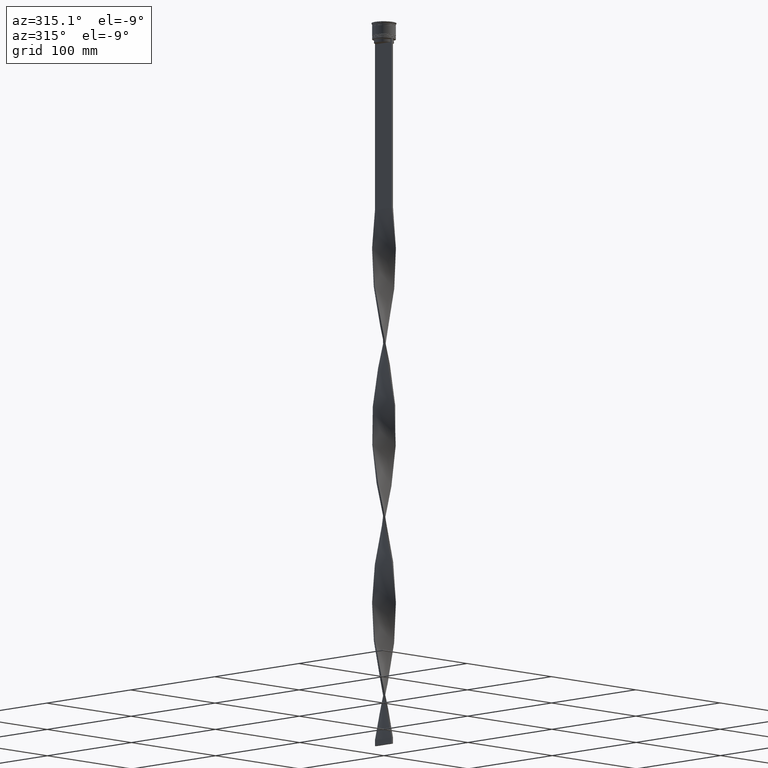
[diagram: clean part render]
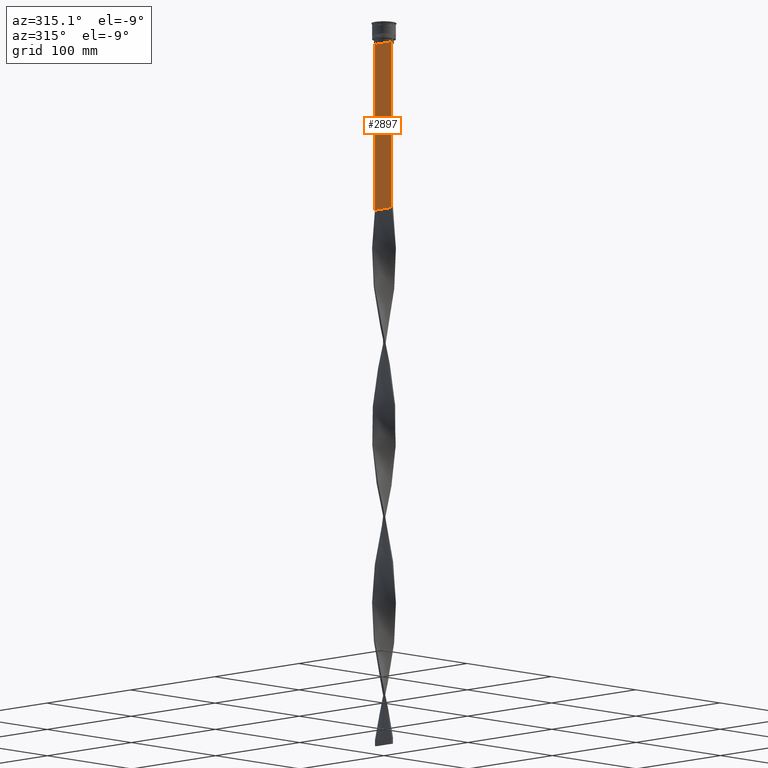
[diagram: same view with one face highlighted and labeled with its STEP entity id]
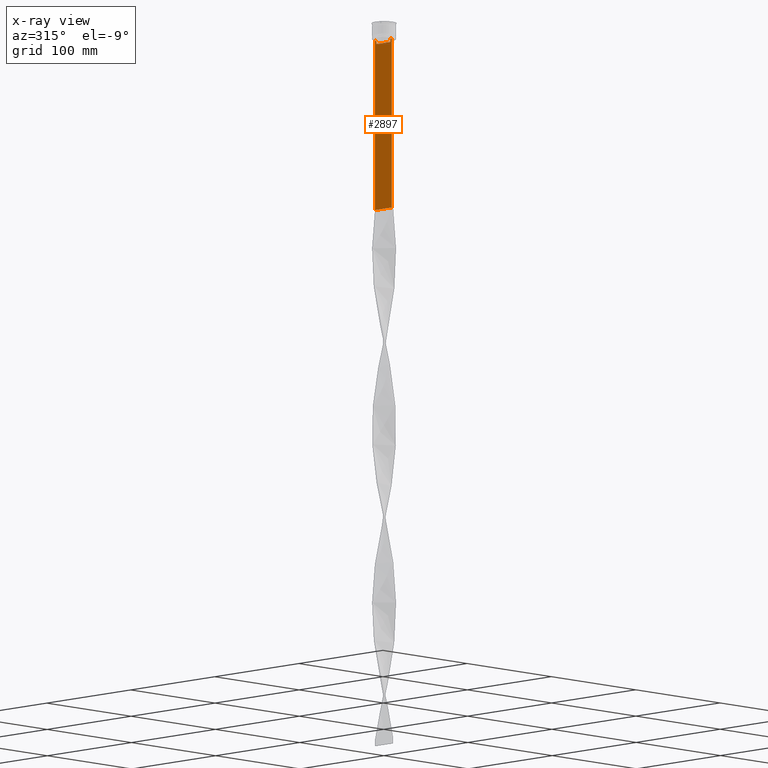
[diagram: x-ray of the same camera — body ghosted, the highlighted face saturated]
A machine part, auxiliary view. The second image highlights one B-rep face of the part: STEP entity #2897.
The next image is the same camera in x-ray: the body ghosted, the highlighted face saturated — about 0% of this face is hidden behind the body in this view.
In plain terms, the highlighted planar face has unit normal (-1, 0, 0).
Its self-contained STEP definition (entity closure, byte-faithful):
#110 = EDGE_CURVE ( 'NONE', #1362, #1894, #4490, .T. ) ;
#215 = VERTEX_POINT ( 'NONE', #3112 ) ;
#231 = DIRECTION ( 'NONE',  ( 0.000000000000000000, -1.000000000000000000, 0.000000000000000000 ) ) ;
#317 = CARTESIAN_POINT ( 'NONE',  ( -0.7499999999999997780, 9.871550030263740894, -14.00000000000000178 ) ) ;
#331 = LINE ( 'NONE', #759, #829 ) ;
#350 = DIRECTION ( 'NONE',  ( 0.000000000000000000, 1.000000000000000000, 0.000000000000000000 ) ) ;
#419 = LINE ( 'NONE', #1823, #915 ) ;
#455 = ORIENTED_EDGE ( 'NONE', *, *, #110, .F. ) ;
#513 = VERTEX_POINT ( 'NONE', #3060 ) ;
#514 = CARTESIAN_POINT ( 'NONE',  ( -0.7499999999999997780, 8.366450860430608927, 0.000000000000000000 ) ) ;
#581 = EDGE_CURVE ( 'NONE', #1566, #3978, #3889, .T. ) ;
#584 = LINE ( 'NONE', #945, #3787 ) ;
#589 = EDGE_CURVE ( 'NONE', #2084, #732, #772, .T. ) ;
#732 = VERTEX_POINT ( 'NONE', #4033 ) ;
#742 = CARTESIAN_POINT ( 'NONE',  ( -0.7499999999999997780, 8.868342573446296839, -14.00000000000000178 ) ) ;
#746 = ORIENTED_EDGE ( 'NONE', *, *, #4021, .F. ) ;
#759 = CARTESIAN_POINT ( 'NONE',  ( -0.7499999999999997780, -10.00000000000000533, -157.9999999999999716 ) ) ;
#772 = LINE ( 'NONE', #1461, #3246 ) ;
#829 = VECTOR ( 'NONE', #350, 1000.000000000000000 ) ;
#850 = CARTESIAN_POINT ( 'NONE',  ( -0.7499999999999997780, -8.533766903463440912, -14.33335220807192201 ) ) ;
#909 = VECTOR ( 'NONE', #1809, 1000.000000000000000 ) ;
#915 = VECTOR ( 'NONE', #3241, 1000.000000000000000 ) ;
#939 = LINE ( 'NONE', #2682, #4300 ) ;
#945 = CARTESIAN_POINT ( 'NONE',  ( -0.7499999999999997780, 8.400000000000003908, -17.00000000000000000 ) ) ;
#947 = ORIENTED_EDGE ( 'NONE', *, *, #1652, .F. ) ;
#1074 = EDGE_CURVE ( 'NONE', #3623, #513, #3672, .T. ) ;
#1115 = CARTESIAN_POINT ( 'NONE',  ( -0.7499999999999997780, -8.701063080777123204, -14.16668447713511547 ) ) ;
#1124 = EDGE_CURVE ( 'NONE', #4169, #1362, #419, .T. ) ;
#1146 = CARTESIAN_POINT ( 'NONE',  ( -0.7499999999999997780, -8.366450860430608927, 0.000000000000000000 ) ) ;
#1198 = VECTOR ( 'NONE', #3367, 1000.000000000000000 ) ;
#1261 = ORIENTED_EDGE ( 'NONE', *, *, #2131, .F. ) ;
#1318 = DIRECTION ( 'NONE',  ( 0.000000000000000000, -1.000000000000000000, 0.000000000000000000 ) ) ;
#1328 = CARTESIAN_POINT ( 'NONE',  ( -0.7499999999999997780, -10.00000000000000533, -14.00000000000000178 ) ) ;
#1362 = VERTEX_POINT ( 'NONE', #317 ) ;
#1402 = VECTOR ( 'NONE', #3071, 1000.000000000000000 ) ;
#1461 = CARTESIAN_POINT ( 'NONE',  ( -0.7499999999999997780, -10.00000000000000533, -14.00000000000000178 ) ) ;
#1495 = ORIENTED_EDGE ( 'NONE', *, *, #1074, .F. ) ;
#1566 = VERTEX_POINT ( 'NONE', #1818 ) ;
#1652 = EDGE_CURVE ( 'NONE', #215, #2076, #3689, .T. ) ;
#1704 = EDGE_CURVE ( 'NONE', #2076, #3623, #584, .T. ) ;
#1785 = CARTESIAN_POINT ( 'NONE',  ( -0.7499999999999997780, 8.701063075415252257, -14.16668448247791723 ) ) ;
#1804 = B_SPLINE_CURVE_WITH_KNOTS ( 'NONE', 3,
 ( #2867, #850, #1115, #2585 ),
 .UNSPECIFIED., .F., .F.,
 ( 4, 4 ),
 ( 0.03866293624047253963, 0.03937282246709321309 ),
 .UNSPECIFIED. ) ;
#1809 = DIRECTION ( 'NONE',  ( 0.000000000000000000, 0.000000000000000000, -1.000000000000000000 ) ) ;
#1818 = CARTESIAN_POINT ( 'NONE',  ( -0.7499999999999997780, -10.00000000000000533, -14.00000000000000178 ) ) ;
#1823 = CARTESIAN_POINT ( 'NONE',  ( -0.7499999999999997780, -10.00000000000000533, -14.00000000000000178 ) ) ;
#1867 = ORIENTED_EDGE ( 'NONE', *, *, #1704, .F. ) ;
#1889 = CARTESIAN_POINT ( 'NONE',  ( -0.7499999999999997780, -8.366450860430608927, -17.00000000000000000 ) ) ;
#1894 = VERTEX_POINT ( 'NONE', #4499 ) ;
#2076 = VERTEX_POINT ( 'NONE', #3847 ) ;
#2084 = VERTEX_POINT ( 'NONE', #2457 ) ;
#2131 = EDGE_CURVE ( 'NONE', #513, #2084, #1804, .T. ) ;
#2210 = ORIENTED_EDGE ( 'NONE', *, *, #581, .F. ) ;
#2214 = ORIENTED_EDGE ( 'NONE', *, *, #3520, .F. ) ;
#2337 = DIRECTION ( 'NONE',  ( 0.000000000000000000, 0.000000000000000000, 1.000000000000000000 ) ) ;
#2414 = ORIENTED_EDGE ( 'NONE', *, *, #3293, .F. ) ;
#2457 = CARTESIAN_POINT ( 'NONE',  ( -0.7499999999999997780, -8.868342573446296839, -14.00000000000000178 ) ) ;
#2514 = ORIENTED_EDGE ( 'NONE', *, *, #1124, .F. ) ;
#2518 = VECTOR ( 'NONE', #3427, 1000.000000000000000 ) ;
#2585 = CARTESIAN_POINT ( 'NONE',  ( -0.7499999999999997780, -8.868342573446296839, -14.00000000000000178 ) ) ;
#2640 = ORIENTED_EDGE ( 'NONE', *, *, #3784, .T. ) ;
#2682 = CARTESIAN_POINT ( 'NONE',  ( -0.7499999999999997780, -10.00000000000000533, -14.00000000000000178 ) ) ;
#2767 = PLANE ( 'NONE',  #4224 ) ;
#2860 = CARTESIAN_POINT ( 'NONE',  ( -0.7499999999999997780, -10.00000000000000533, 6.056171120131581098 ) ) ;
#2862 = CARTESIAN_POINT ( 'NONE',  ( -0.7499999999999997780, 9.999999999999998224, -14.00000000000000178 ) ) ;
#2867 = CARTESIAN_POINT ( 'NONE',  ( -0.7499999999999997780, -8.366450860430608927, -14.50000000000000000 ) ) ;
#2879 = CARTESIAN_POINT ( 'NONE',  ( -0.7499999999999997780, 9.999999999999998224, -157.9999999999999716 ) ) ;
#2897 = ADVANCED_FACE ( 'NONE', ( #4534 ), #2767, .T. ) ;
#3060 = CARTESIAN_POINT ( 'NONE',  ( -0.7499999999999997780, -8.366450860430608927, -14.50000000000000000 ) ) ;
#3071 = DIRECTION ( 'NONE',  ( 0.000000000000000000, -1.000000000000000000, 0.000000000000000000 ) ) ;
#3112 = CARTESIAN_POINT ( 'NONE',  ( -0.7499999999999997780, 8.366450860430608927, -14.50000000000000000 ) ) ;
#3241 = DIRECTION ( 'NONE',  ( 0.000000000000000000, -1.000000000000000000, 0.000000000000000000 ) ) ;
#3246 = VECTOR ( 'NONE', #4306, 1000.000000000000000 ) ;
#3293 = EDGE_CURVE ( 'NONE', #3978, #3986, #331, .T. ) ;
#3367 = DIRECTION ( 'NONE',  ( 0.000000000000000000, 0.000000000000000000, -1.000000000000000000 ) ) ;
#3427 = DIRECTION ( 'NONE',  ( 0.000000000000000000, 0.000000000000000000, -1.000000000000000000 ) ) ;
#3445 = CARTESIAN_POINT ( 'NONE',  ( -0.7499999999999997780, -10.00000000000000533, 6.056171120131581098 ) ) ;
#3520 = EDGE_CURVE ( 'NONE', #732, #1566, #939, .T. ) ;
#3576 = CARTESIAN_POINT ( 'NONE',  ( -0.7499999999999997780, 8.533766897779926808, -14.33335221373273782 ) ) ;
#3623 = VERTEX_POINT ( 'NONE', #1889 ) ;
#3672 = LINE ( 'NONE', #1146, #4225 ) ;
#3689 = LINE ( 'NONE', #514, #1198 ) ;
#3784 = EDGE_CURVE ( 'NONE', #4169, #3986, #3866, .T. ) ;
#3787 = VECTOR ( 'NONE', #1318, 1000.000000000000000 ) ;
#3807 = EDGE_LOOP ( 'NONE', ( #746, #455, #2514, #2640, #2414, #2210, #2214, #4289, #1261, #1495, #1867, #947 ) ) ;
#3847 = CARTESIAN_POINT ( 'NONE',  ( -0.7499999999999997780, 8.366450860430608927, -17.00000000000000000 ) ) ;
#3866 = LINE ( 'NONE', #4190, #2518 ) ;
#3889 = LINE ( 'NONE', #2860, #909 ) ;
#3906 = CARTESIAN_POINT ( 'NONE',  ( -0.7499999999999997780, 8.366450860430608927, -14.50000000000000000 ) ) ;
#3933 = CARTESIAN_POINT ( 'NONE',  ( -0.7499999999999998890, -10.00000000000000533, -157.9999999999999716 ) ) ;
#3972 = DIRECTION ( 'NONE',  ( -0.000000000000000000, -0.000000000000000000, 1.000000000000000000 ) ) ;
#3978 = VERTEX_POINT ( 'NONE', #3933 ) ;
#3986 = VERTEX_POINT ( 'NONE', #2879 ) ;
#4021 = EDGE_CURVE ( 'NONE', #1894, #215, #4414, .T. ) ;
#4033 = CARTESIAN_POINT ( 'NONE',  ( -0.7499999999999997780, -9.871550030263740894, -14.00000000000000178 ) ) ;
#4169 = VERTEX_POINT ( 'NONE', #2862 ) ;
#4188 = DIRECTION ( 'NONE',  ( -1.000000000000000000, 0.000000000000000000, 0.000000000000000000 ) ) ;
#4190 = CARTESIAN_POINT ( 'NONE',  ( -0.7499999999999997780, 9.999999999999998224, 6.056171120131581098 ) ) ;
#4224 = AXIS2_PLACEMENT_3D ( 'NONE', #3445, #4188, #2337 ) ;
#4225 = VECTOR ( 'NONE', #3972, 1000.000000000000000 ) ;
#4289 = ORIENTED_EDGE ( 'NONE', *, *, #589, .F. ) ;
#4300 = VECTOR ( 'NONE', #231, 1000.000000000000000 ) ;
#4306 = DIRECTION ( 'NONE',  ( 0.000000000000000000, -1.000000000000000000, 0.000000000000000000 ) ) ;
#4414 = B_SPLINE_CURVE_WITH_KNOTS ( 'NONE', 3,
 ( #742, #1785, #3576, #3906 ),
 .UNSPECIFIED., .F., .F.,
 ( 4, 4 ),
 ( 0.01512225952876174867, 0.01583070519299695222 ),
 .UNSPECIFIED. ) ;
#4490 = LINE ( 'NONE', #1328, #1402 ) ;
#4499 = CARTESIAN_POINT ( 'NONE',  ( -0.7499999999999997780, 8.868342573446296839, -14.00000000000000178 ) ) ;
#4534 = FACE_OUTER_BOUND ( 'NONE', #3807, .T. ) ;